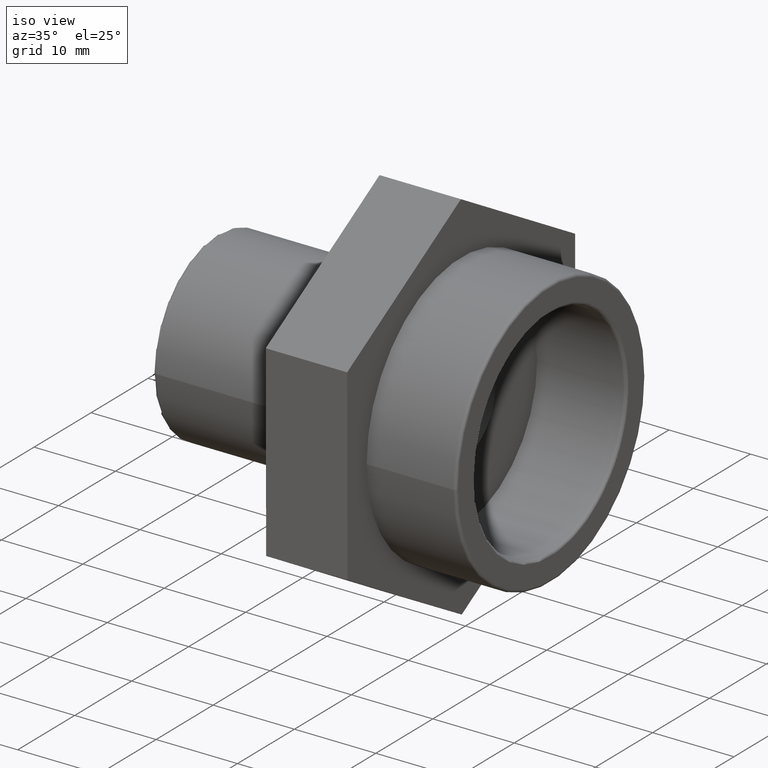
[diagram: clean part render]
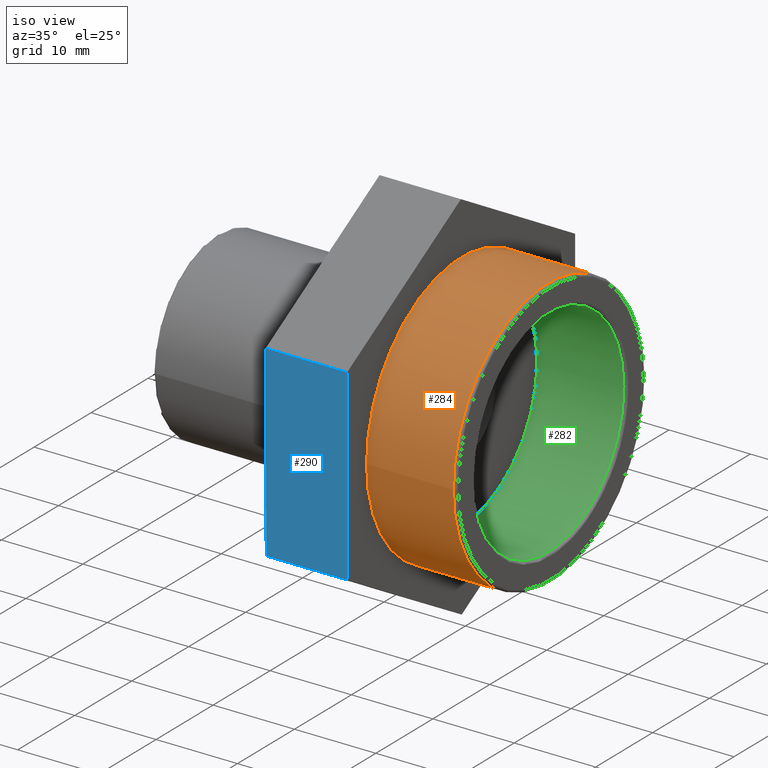
[diagram: same view with three faces highlighted in distinct colors, each labeled with its STEP entity id]
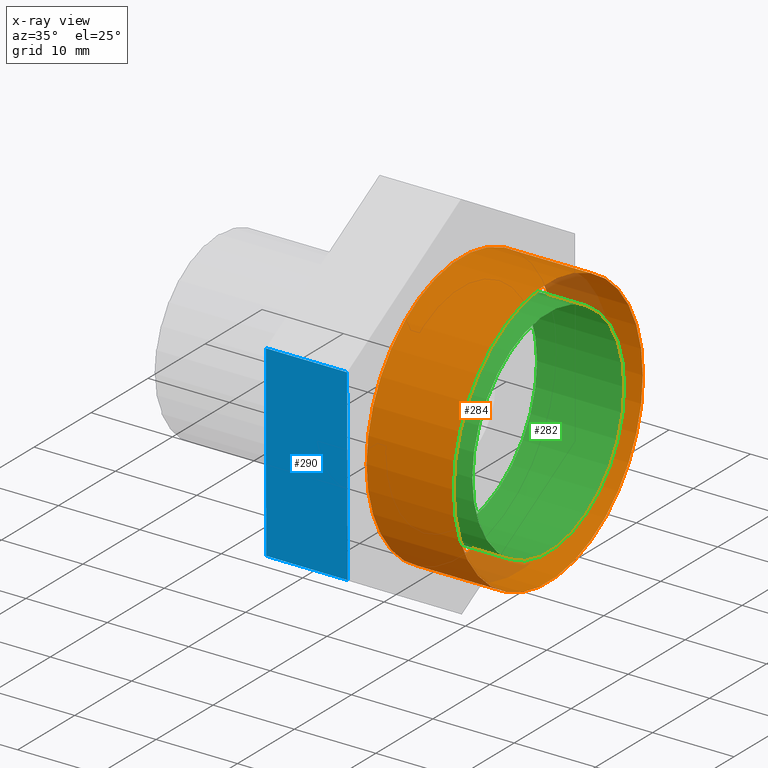
[diagram: x-ray of the same camera — body ghosted, the three highlighted faces saturated]
A machine part, iso view with three faces highlighted in distinct colors.
The next image is the same camera in x-ray (body ghosted, the three faces saturated) — at least one of them is partly hidden behind the body in this view.
Their STEP definitions:

[orange] entity #284 — the highlighted cylindrical surface (bore or boss wall) has radius 16.6245 mm, axis along (-1, -0, 0).
#52=CYLINDRICAL_SURFACE('',#312,16.6245);
#72=FACE_BOUND('',#113,.T.);
#87=FACE_OUTER_BOUND('',#112,.T.);
#112=EDGE_LOOP('',(#220));
#113=EDGE_LOOP('',(#221));
#144=CIRCLE('',#311,16.6245);
#145=CIRCLE('',#313,16.6245);
#158=VERTEX_POINT('',#441);
#159=VERTEX_POINT('',#444);
#184=EDGE_CURVE('',#158,#158,#144,.T.);
#185=EDGE_CURVE('',#159,#159,#145,.T.);
#220=ORIENTED_EDGE('',*,*,#185,.F.);
#221=ORIENTED_EDGE('',*,*,#184,.F.);
#284=ADVANCED_FACE('',(#87,#72),#52,.T.);
#311=AXIS2_PLACEMENT_3D('',#442,#356,#357);
#312=AXIS2_PLACEMENT_3D('',#443,#358,#359);
#313=AXIS2_PLACEMENT_3D('',#445,#360,#361);
#356=DIRECTION('center_axis',(1.,1.83697019872103E-16,0.));
#357=DIRECTION('ref_axis',(-1.83651437199265E-16,1.,6.12323399573677E-17));
#358=DIRECTION('center_axis',(-1.,-1.83697019872103E-16,0.));
#359=DIRECTION('ref_axis',(1.48524819347847E-16,-1.,0.));
#360=DIRECTION('center_axis',(-1.,-1.83697019872103E-16,0.));
#361=DIRECTION('ref_axis',(0.,0.,1.));
#441=CARTESIAN_POINT('',(20.16751,-16.6245,-3.05387110686378E-15));
#442=CARTESIAN_POINT('Origin',(20.16751,7.47050039261895E-15,0.));
#443=CARTESIAN_POINT('Origin',(15.,6.52124420545966E-15,0.));
#444=CARTESIAN_POINT('',(9.50000000000001,-16.6245,0.));
#445=CARTESIAN_POINT('Origin',(9.5,5.51091059616309E-15,0.));

[blue] entity #290 — the highlighted planar face has unit normal (0, -1, -0.003).
#15=LINE('',#466,#33);
#16=LINE('',#468,#34);
#17=LINE('',#470,#35);
#18=LINE('',#471,#36);
#33=VECTOR('',#386,23.0940107675851);
#34=VECTOR('',#387,10.);
#35=VECTOR('',#388,23.0940107675851);
#36=VECTOR('',#389,10.);
#58=PLANE('',#325);
#93=FACE_OUTER_BOUND('',#124,.T.);
#124=EDGE_LOOP('',(#232,#233,#234,#235));
#166=VERTEX_POINT('',#464);
#167=VERTEX_POINT('',#465);
#168=VERTEX_POINT('',#467);
#169=VERTEX_POINT('',#469);
#192=EDGE_CURVE('',#166,#167,#15,.T.);
#193=EDGE_CURVE('',#168,#167,#16,.T.);
#194=EDGE_CURVE('',#168,#169,#17,.T.);
#195=EDGE_CURVE('',#169,#166,#18,.T.);
#232=ORIENTED_EDGE('',*,*,#192,.T.);
#233=ORIENTED_EDGE('',*,*,#193,.F.);
#234=ORIENTED_EDGE('',*,*,#194,.T.);
#235=ORIENTED_EDGE('',*,*,#195,.T.);
#290=ADVANCED_FACE('',(#93),#58,.T.);
#325=AXIS2_PLACEMENT_3D('',#463,#384,#385);
#384=DIRECTION('center_axis',(1.48029086710997E-16,-0.999995609627469,-0.00296322894591721));
#385=DIRECTION('ref_axis',(0.,-0.00296322894591725,0.999995609627469));
#386=DIRECTION('',(-5.44336326563744E-19,0.00296322894591721,-0.999995609627469));
#387=DIRECTION('',(-1.,-1.48029736616687E-16,0.));
#388=DIRECTION('',(5.44336326563744E-19,-0.00296322894591721,0.999995609627469));
#389=DIRECTION('',(-1.,-1.48029736616687E-16,0.));
#463=CARTESIAN_POINT('Origin',(9.50000000000001,-19.9656957719575,-11.6062192670557));
#464=CARTESIAN_POINT('',(-0.499999999999994,-20.0341286131414,11.4876901092189));
#465=CARTESIAN_POINT('',(-0.499999999999994,-19.9656957719575,-11.6062192670557));
#466=CARTESIAN_POINT('',(-0.499999999999996,-19.9828039822535,-5.83274192298703));
#467=CARTESIAN_POINT('',(9.50000000000001,-19.9656957719575,-11.6062192670557));
#468=CARTESIAN_POINT('',(9.50000000000001,-19.9656957719575,-11.6062192670557));
#469=CARTESIAN_POINT('',(9.50000000000001,-20.0341286131414,11.4876901092189));
#470=CARTESIAN_POINT('',(9.50000000000001,-19.9656957719575,-11.6062192670557));
#471=CARTESIAN_POINT('',(9.50000000000001,-20.0341286131414,11.4876901092189));

[green] entity #282 — the highlighted cylindrical surface (bore or boss wall) has radius 13.2996 mm, axis along (-1, -0, 0).
#51=CYLINDRICAL_SURFACE('',#308,13.2996);
#70=FACE_BOUND('',#109,.T.);
#85=FACE_OUTER_BOUND('',#108,.T.);
#108=EDGE_LOOP('',(#216));
#109=EDGE_LOOP('',(#217));
#140=CIRCLE('',#304,13.2996);
#143=CIRCLE('',#309,13.2996);
#154=VERTEX_POINT('',#430);
#157=VERTEX_POINT('',#438);
#180=EDGE_CURVE('',#154,#154,#140,.T.);
#183=EDGE_CURVE('',#157,#157,#143,.T.);
#216=ORIENTED_EDGE('',*,*,#183,.T.);
#217=ORIENTED_EDGE('',*,*,#180,.F.);
#282=ADVANCED_FACE('',(#85,#70),#51,.F.);
#304=AXIS2_PLACEMENT_3D('',#431,#342,#343);
#308=AXIS2_PLACEMENT_3D('',#437,#350,#351);
#309=AXIS2_PLACEMENT_3D('',#439,#352,#353);
#342=DIRECTION('center_axis',(-1.,-1.83697019872103E-16,0.));
#343=DIRECTION('ref_axis',(-1.82607963124269E-16,1.,6.12323399573677E-17));
#350=DIRECTION('center_axis',(-1.,-1.83697019872103E-16,0.));
#351=DIRECTION('ref_axis',(1.48524819347847E-16,-1.,0.));
#352=DIRECTION('center_axis',(-1.,-1.83697019872103E-16,0.));
#353=DIRECTION('ref_axis',(0.,0.,1.));
#430=CARTESIAN_POINT('',(20.16751,-13.2996,8.14365628497008E-16));
#431=CARTESIAN_POINT('Origin',(20.16751,7.47050039261895E-15,0.));
#437=CARTESIAN_POINT('Origin',(15.,6.52124420545966E-15,0.));
#438=CARTESIAN_POINT('',(9.50000000000001,-13.2996,0.));
#439=CARTESIAN_POINT('Origin',(9.5,5.51091059616309E-15,0.));